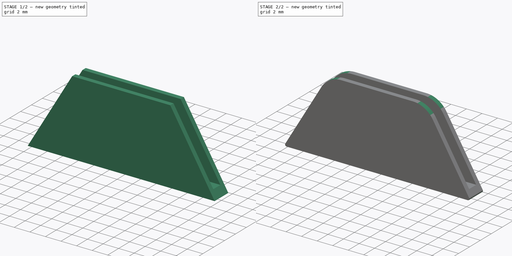
[diagram: build sequence overview — one tinted view per stage of 2, left to right]
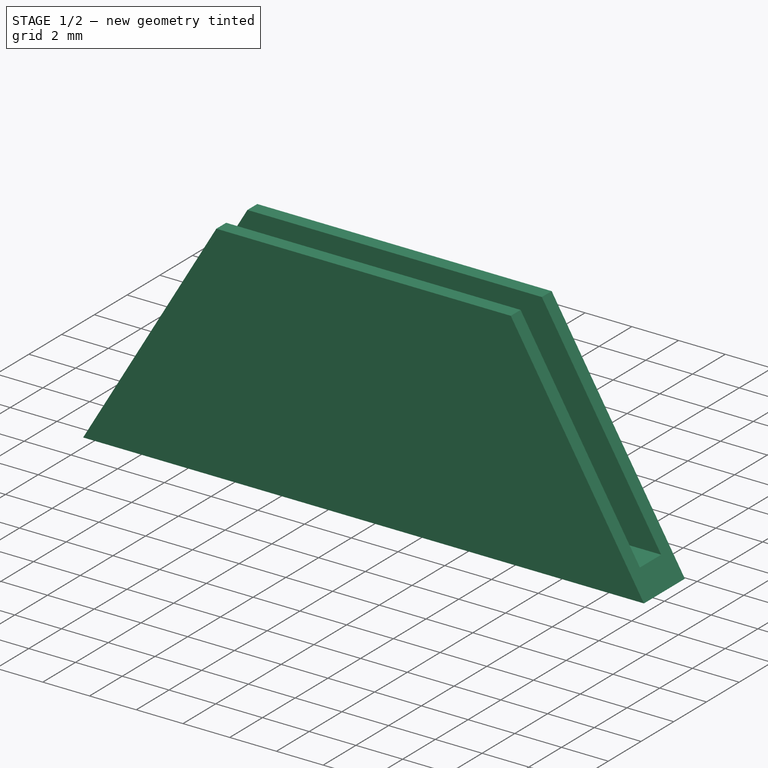
[diagram: stage 1 of 2 — iso view after this stage's code; geometry added in this stage tinted green]
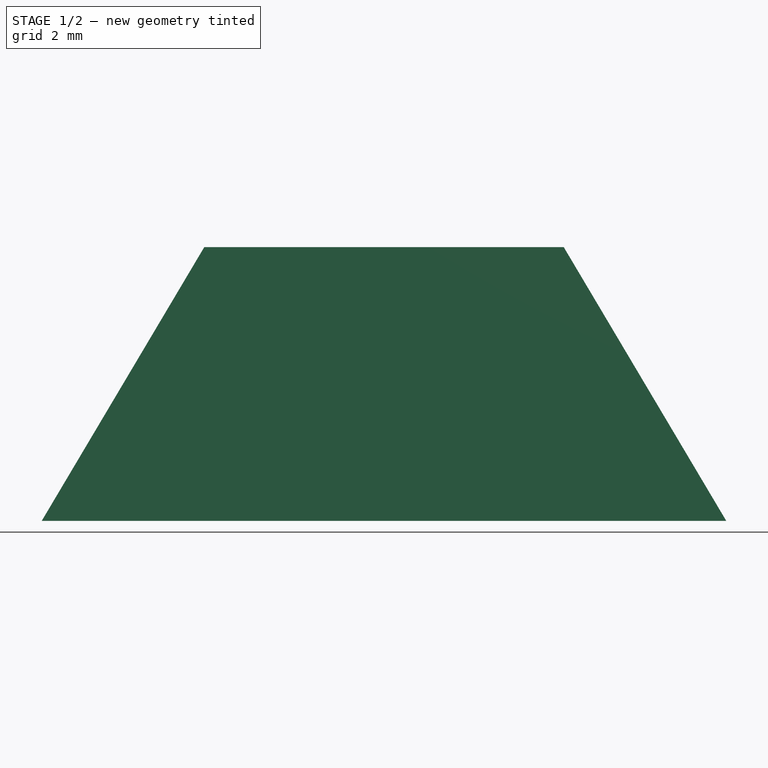
[diagram: stage 1 of 2 — front view after this stage's code; geometry added in this stage tinted green]
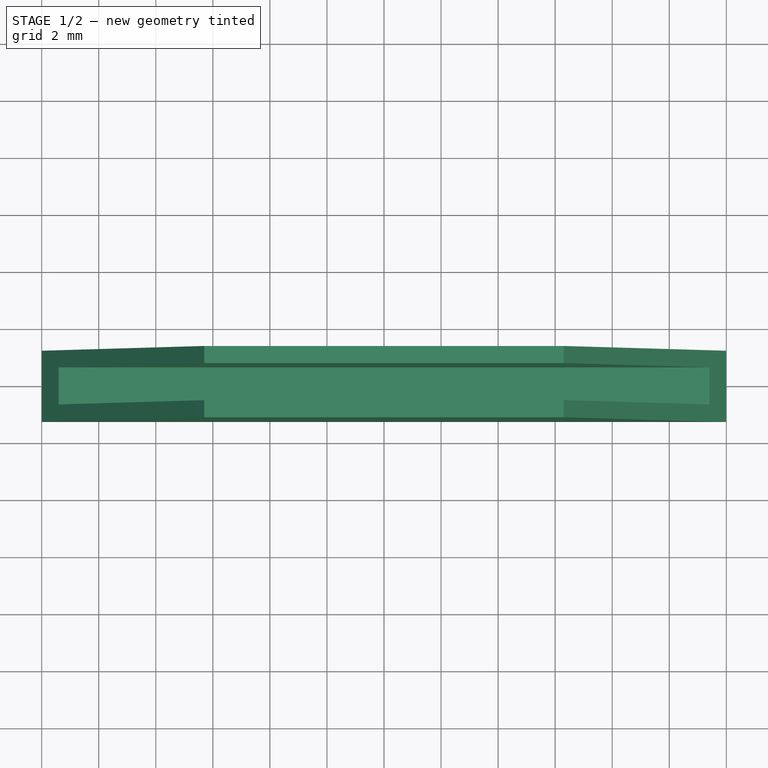
[diagram: stage 1 of 2 — top view after this stage's code; geometry added in this stage tinted green]
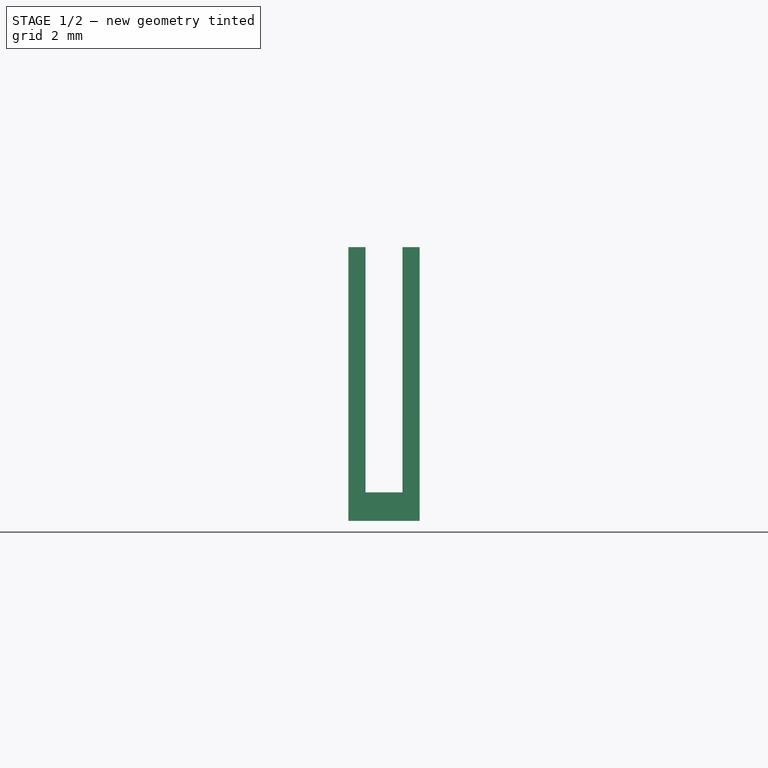
[diagram: stage 1 of 2 — right view after this stage's code; geometry added in this stage tinted green]
FCSTD DOCUMENT  (FreeCAD 0.21R33694 (Git))
Label: Model
License: All rights reserved
LicenseURL: http://en.wikipedia.org/wiki/All_rights_reserved
objects: Sketcher::SketchObject×2, PartDesign::Fillet×2, PartDesign::Pad×1, PartDesign::Pocket×1, PartDesign::Body×1
note: 11 computed .brp shape members not serialized (recipe doc carries the construction recipe); baked Part::Feature solids carry a one-line shape summary decoded from their .brp

FEATURE [Sketcher::SketchObject] Sketch
  FullyConstrained = true
  MapMode = 5
  Placement = pos=(0,0,0) rot=(0.57735,0.57735,0.57735;2.0944rad)
  Support = -> [YZ_Plane]
  sketch-geometry (10):
    g0: LineSegment StartX=0 StartY=0 StartZ=0 EndX=0.65 EndY=0 EndZ=0
    g1: LineSegment StartX=0.65 StartY=0 StartZ=0 EndX=0.65 EndY=8.6 EndZ=0
    g2: LineSegment StartX=0.65 StartY=8.6 StartZ=0 EndX=1.25 EndY=8.6 EndZ=0
    g3: LineSegment StartX=1.25 StartY=8.6 StartZ=0 EndX=1.25 EndY=-1 EndZ=0
    g4: LineSegment StartX=1.25 StartY=-1 StartZ=0 EndX=0 EndY=-1 EndZ=0
    g5: LineSegment StartX=0 StartY=0 StartZ=0 EndX=-0.65 EndY=-4.45802e-06 EndZ=0
    g6: LineSegment StartX=-0.65 StartY=-4.45802e-06 StartZ=0 EndX=-0.65 EndY=8.6 EndZ=0
    g7: LineSegment StartX=-0.65 StartY=8.6 StartZ=0 EndX=-1.25 EndY=8.6 EndZ=0
    g8: LineSegment StartX=-1.25 StartY=8.6 StartZ=0 EndX=-1.25 EndY=-1 EndZ=0
    g9: LineSegment StartX=-1.25 StartY=-1 StartZ=0 EndX=0 EndY=-1 EndZ=0
  constraints (29):
    c: Coincident(g0,g-1)
    c: PointOnObject(g0,g-1)
    c: Coincident(g0,g1)
    c: Vertical(g1)
    c: Coincident(g1,g2)
    c: Horizontal(g2)
    c: Coincident(g2,g3)
    c: Vertical(g3)
    c: Coincident(g3,g4)
    c: PointOnObject(g4,g-2)
    c: Horizontal(g4)
    c: DistanceX(g0,g0) = 0.65
    c: DistanceX(g2,g2) = 0.6
    c: DistanceY(g3,g3) = 9.6
    c: DistanceY(g4,g0) = 1
    c: Coincident(g5,g6)
    c: Vertical(g6)
    c: Coincident(g6,g7)
    c: Horizontal(g7)
    c: Coincident(g7,g8)
    c: Vertical(g8)
    c: Coincident(g8,g9)
    c: Horizontal(g9)
    c: Equal(g8,g3)
    c: Equal(g7,g2)
    c: Equal(g5,g0)
    c: Equal(g9,g4)
    c: Coincident(g5,g0)
    c: Coincident(g9,g4)
FEATURE [PartDesign::Pad] Pad
  Direction = (1,-2e-16,3e-16)
  Length = 12
  Length2 = 12
  Placement = pos=(0,0,0) rot=(1,1,1;2.0944rad)
  Profile = -> Sketch
  ReferenceAxis = -> Sketch [N_Axis]
  Type = 4
FEATURE [Sketcher::SketchObject] Sketch001
  ExternalGeometry = -> [Pad]
  FullyConstrained = true
  MapMode = 5
  Placement = pos=(-6e-16,-1.25,4e-16) rot=(-0.57735,-0.57735,0.57735;4.18879rad)
  Support = -> [Pad]
  sketch-geometry (10):
    g0: LineSegment StartX=1 StartY=12 StartZ=0 EndX=-8.6 EndY=6.3 EndZ=0
    g1: LineSegment StartX=1 StartY=12 StartZ=0 EndX=1 EndY=14 EndZ=0
    g2: LineSegment StartX=1 StartY=14 StartZ=0 EndX=-11 EndY=14 EndZ=0
    g3: LineSegment StartX=-11 StartY=14 StartZ=0 EndX=-11 EndY=0 EndZ=0
    g4: LineSegment StartX=-8.6 StartY=6.3 StartZ=0 EndX=-8.6 EndY=0 EndZ=0
    g5: LineSegment StartX=1 StartY=-12 StartZ=0 EndX=1 EndY=-14 EndZ=0
    g6: LineSegment StartX=1 StartY=-12 StartZ=0 EndX=-8.6 EndY=-6.3 EndZ=0
    g7: LineSegment StartX=-8.6 StartY=-6.3 StartZ=0 EndX=-8.6 EndY=0 EndZ=0
    g8: LineSegment StartX=-11 StartY=-14 StartZ=0 EndX=-11 EndY=0 EndZ=0
    g9: LineSegment StartX=1 StartY=-14 StartZ=0 EndX=-11 EndY=-14 EndZ=0
  constraints (29):
    c: Coincident(g0,g-3)
    c: Vertical(g-3,g0)
    c: DistanceY(g-1,g0) = 6.3
    c: Coincident(g1,g0)
    c: Coincident(g1,g2)
    c: Coincident(g2,g3)
    c: PointOnObject(g3,g-1)
    c: Vertical(g3)
    c: Horizontal(g2)
    c: Vertical(g1)
    c: Coincident(g4,g0)
    c: PointOnObject(g4,g-1)
    c: Vertical(g4)
    c: DistanceY(g1,g1) = 2
    c: DistanceX(g2,g2) = 12
    c: Coincident(g5,g6)
    c: Coincident(g5,g9)
    c: Coincident(g9,g8)
    c: Vertical(g8)
    c: Horizontal(g9)
    c: Vertical(g5)
    c: Coincident(g7,g6)
    c: Vertical(g7)
    c: Equal(g4,g7)
    c: Equal(g0,g6)
    c: Equal(g1,g5)
    c: Equal(g2,g9)
    c: Coincident(g8,g3)
    c: Coincident(g7,g4)
FEATURE [PartDesign::Pocket] Pocket
  BaseFeature = -> Pad
  Direction = (4e-16,1,-2e-16)
  Length = 5
  Length2 = 5
  Placement = pos=(0,0,0) rot=(1,1,1;2.0944rad)
  Profile = -> Sketch001
  ReferenceAxis = -> Sketch001 [N_Axis]
  Type = 1
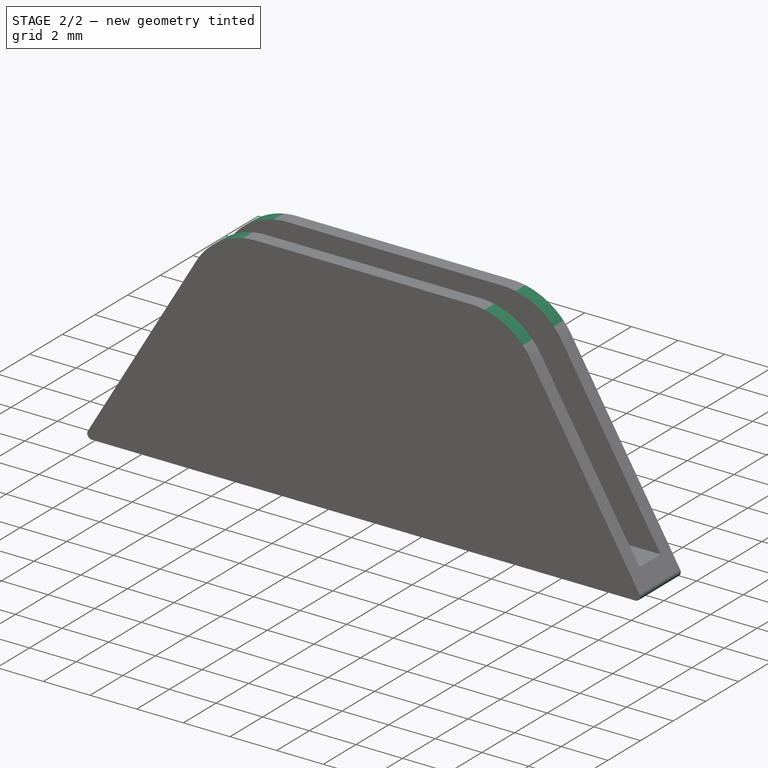
[diagram: stage 2 of 2 — iso view after this stage's code; geometry added in this stage tinted green]
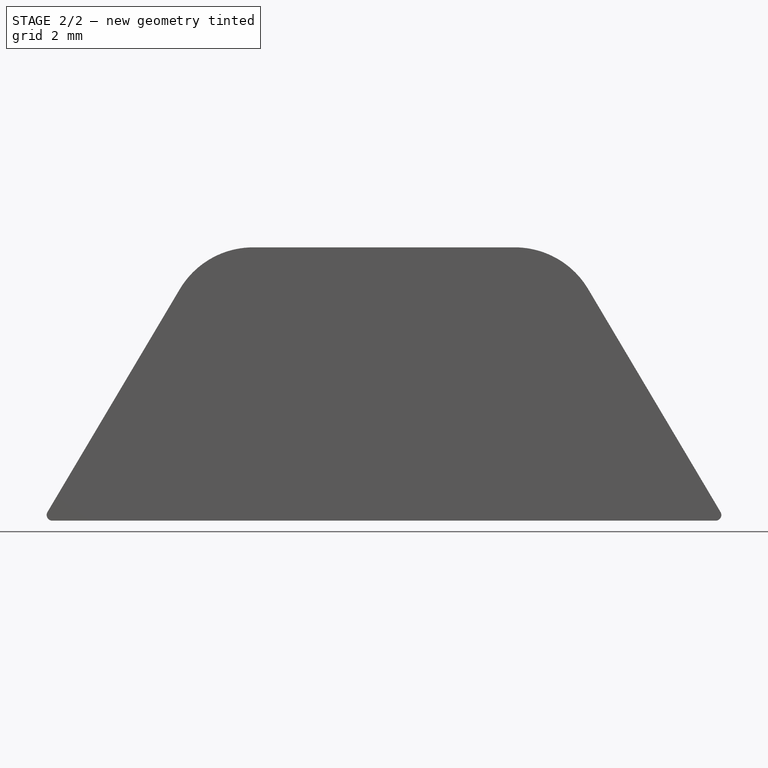
[diagram: stage 2 of 2 — front view after this stage's code; geometry added in this stage tinted green]
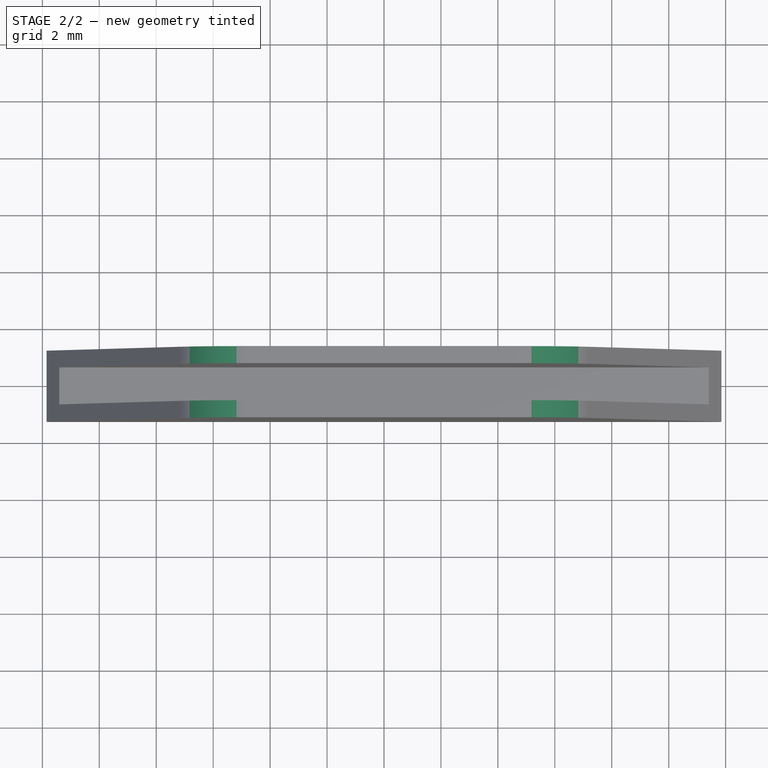
[diagram: stage 2 of 2 — top view after this stage's code; geometry added in this stage tinted green]
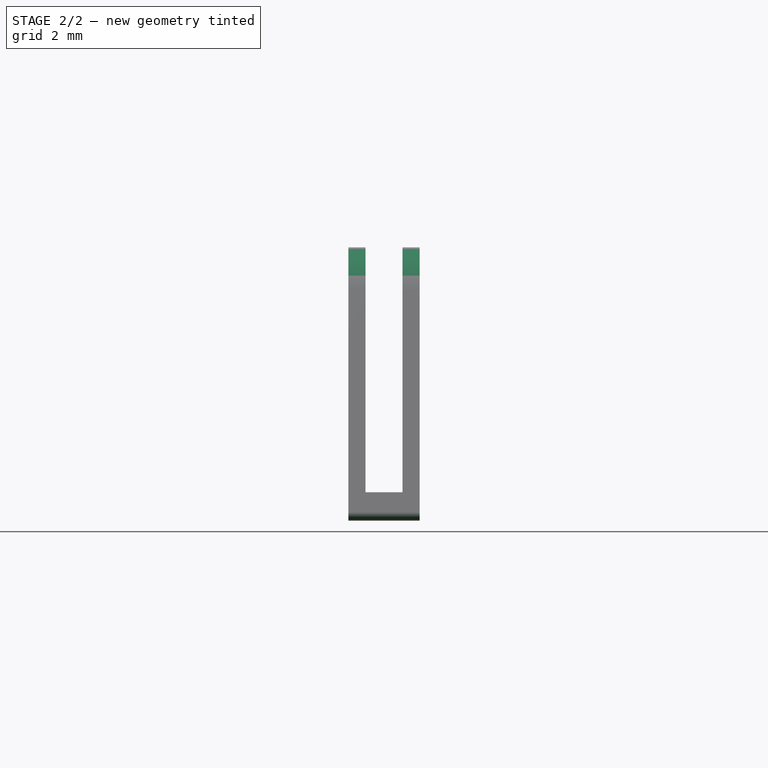
[diagram: stage 2 of 2 — right view after this stage's code; geometry added in this stage tinted green]
FEATURE [PartDesign::Fillet] Fillet
  Base = -> Pocket [Edge18,Edge21,Edge10,Edge6]
  BaseFeature = -> Pocket
  Placement = pos=(0,0,0) rot=(1,1,1;2.0944rad)
  Radius = 3
  SupportTransform = false
  UseAllEdges = false
FEATURE [PartDesign::Fillet] Fillet001
  Base = -> Fillet [Edge20,Edge27,Edge5,Edge3]
  BaseFeature = -> Fillet
  Placement = pos=(0,0,0) rot=(1,1,1;2.0944rad)
  Radius = 0.2
  SupportTransform = false
  UseAllEdges = false
FEATURE [PartDesign::Body] Body
  Group = -> [Sketch,Pad,Sketch001,Pocket,Fillet,Fillet001]
  Origin = -> Origin
  Tip = -> Fillet001
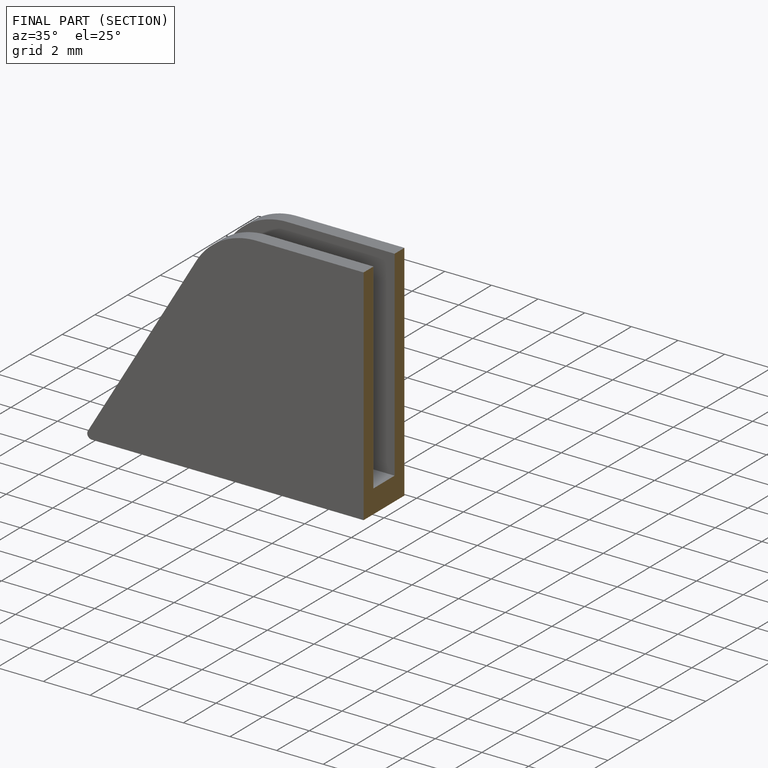
[diagram: finished part — half-section view (interior)]
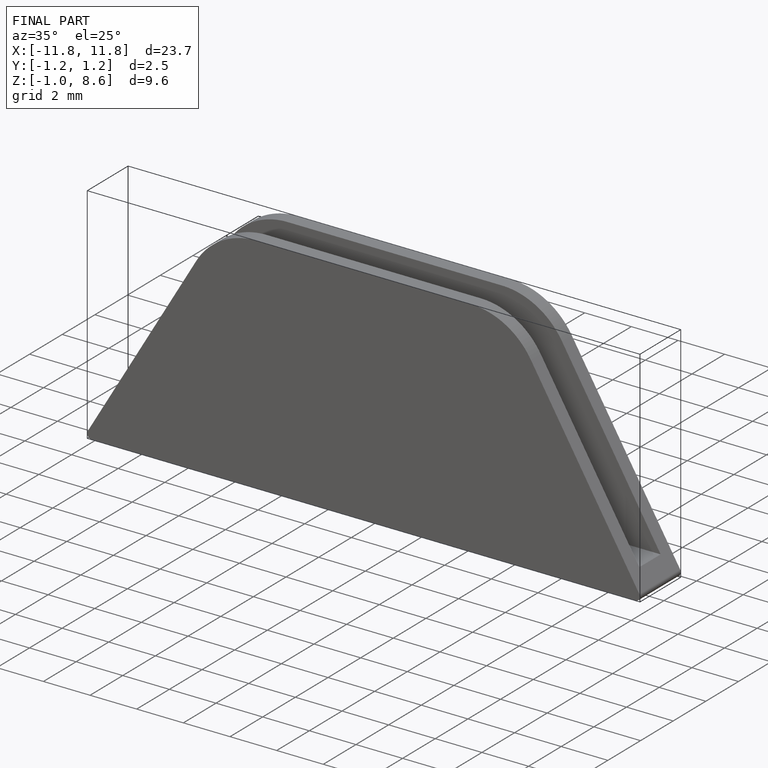
[diagram: finished part — iso view with bounding-box wireframe]
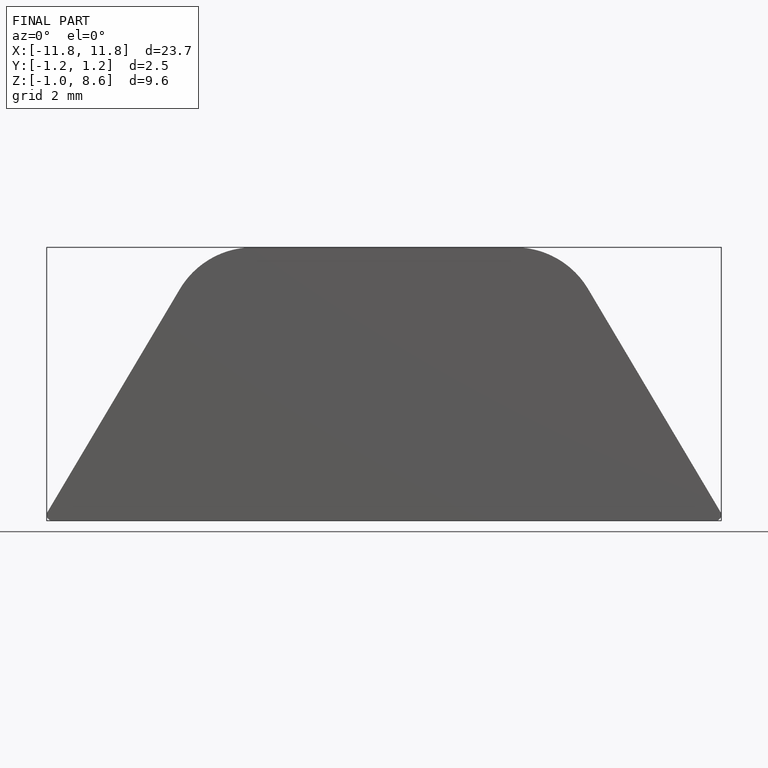
[diagram: finished part — front view with bounding-box wireframe]
